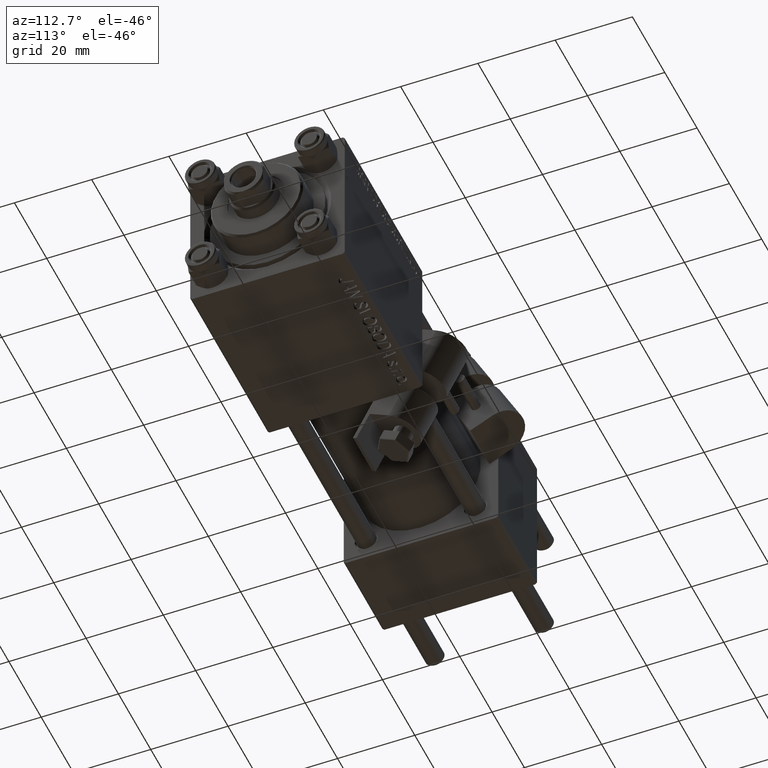
[diagram: clean part render]
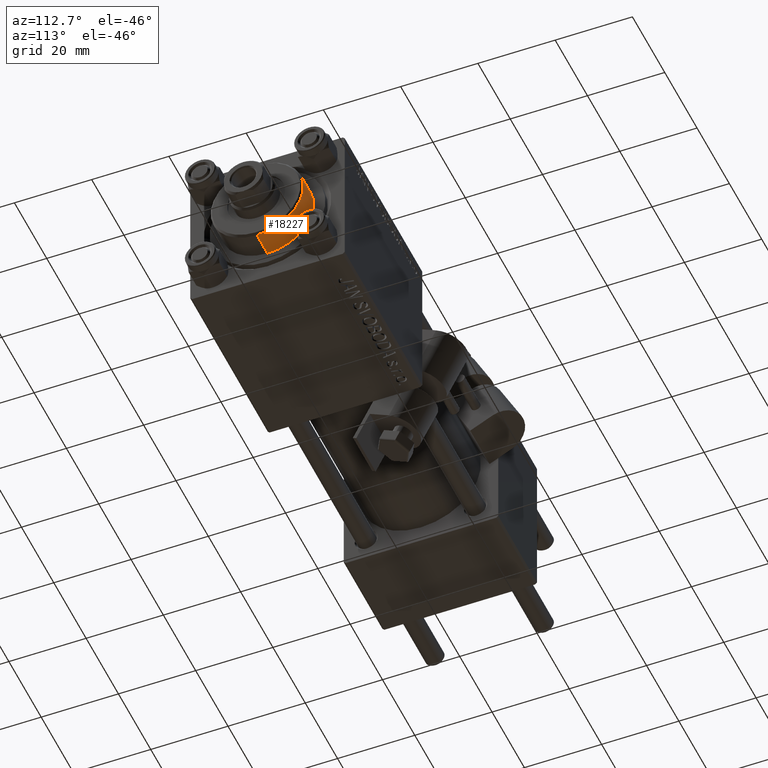
[diagram: same view with one face highlighted and labeled with its STEP entity id]
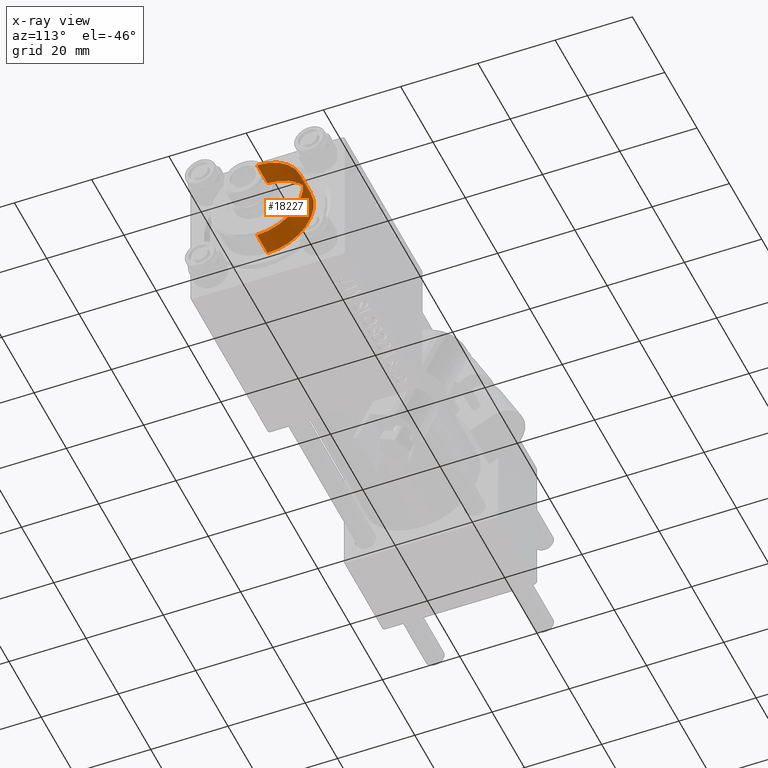
[diagram: x-ray of the same camera — body ghosted, the highlighted face saturated]
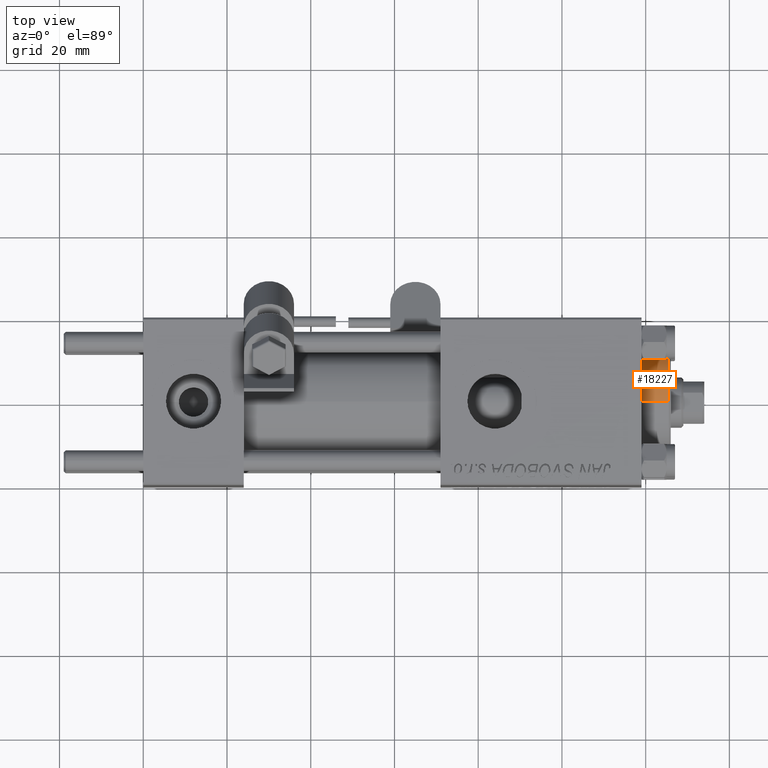
[diagram: same view with one face highlighted and labeled with its STEP entity id]
A machine part, auxiliary view. The second image highlights one B-rep face of the part: STEP entity #18227.
The next image is the same camera in x-ray: the body ghosted, the highlighted face saturated — about 0% of this face is hidden behind the body in this view.
A second angle (top view) of the same face is appended — the face is thin or edge-on in the first view.
In plain terms, the highlighted cylindrical surface (partial cylindrical patch) has radius 12 mm, axis along (-1, -0, 0).
Its self-contained STEP definition (entity closure, byte-faithful):
#4684 = DIRECTION ( 'NONE',  ( -0.000000000000000000, -0.000000000000000000, -1.000000000000000000 ) ) ;
#5420 = CARTESIAN_POINT ( 'NONE',  ( 12.00000000000000178, 1.469576158976824144E-15, 35.19999999999999574 ) ) ;
#6980 = CARTESIAN_POINT ( 'NONE',  ( 0.000000000000000000, 0.000000000000000000, 35.19999999999999574 ) ) ;
#7360 = VERTEX_POINT ( 'NONE', #5420 ) ;
#8060 = EDGE_LOOP ( 'NONE', ( #29598, #37823, #26264, #37351 ) ) ;
#8938 = CARTESIAN_POINT ( 'NONE',  ( 0.000000000000000000, 0.000000000000000000, 35.70000000000000284 ) ) ;
#9387 = LINE ( 'NONE', #13513, #50152 ) ;
#9438 = DIRECTION ( 'NONE',  ( -1.000000000000000000, 0.000000000000000000, 0.000000000000000000 ) ) ;
#11100 = DIRECTION ( 'NONE',  ( 0.000000000000000000, 0.000000000000000000, -1.000000000000000000 ) ) ;
#12177 = VERTEX_POINT ( 'NONE', #28389 ) ;
#12371 = EDGE_CURVE ( 'NONE', #12785, #7360, #38119, .T. ) ;
#12785 = VERTEX_POINT ( 'NONE', #47544 ) ;
#13513 = CARTESIAN_POINT ( 'NONE',  ( 12.00000000000000178, 1.469576158976824144E-15, 35.70000000000000284 ) ) ;
#14050 = EDGE_CURVE ( 'NONE', #20693, #12177, #31614, .T. ) ;
#14107 = DIRECTION ( 'NONE',  ( 0.000000000000000000, 0.000000000000000000, 1.000000000000000000 ) ) ;
#16411 = CYLINDRICAL_SURFACE ( 'NONE', #31766, 12.00000000000000178 ) ;
#17396 = VECTOR ( 'NONE', #4684, 1000.000000000000000 ) ;
#18227 = ADVANCED_FACE ( 'NONE', ( #19501 ), #16411, .T. ) ;
#19501 = FACE_OUTER_BOUND ( 'NONE', #8060, .T. ) ;
#20693 = VERTEX_POINT ( 'NONE', #33614 ) ;
#24229 = LINE ( 'NONE', #39914, #17396 ) ;
#26264 = ORIENTED_EDGE ( 'NONE', *, *, #14050, .T. ) ;
#26782 = DIRECTION ( 'NONE',  ( 1.000000000000000000, 0.000000000000000000, 0.000000000000000000 ) ) ;
#27466 = AXIS2_PLACEMENT_3D ( 'NONE', #6980, #11100, #26782 ) ;
#28213 = EDGE_CURVE ( 'NONE', #12785, #12177, #24229, .T. ) ;
#28389 = CARTESIAN_POINT ( 'NONE',  ( -12.00000000000000178, 0.000000000000000000, 28.69999999999999929 ) ) ;
#29598 = ORIENTED_EDGE ( 'NONE', *, *, #12371, .T. ) ;
#29783 = DIRECTION ( 'NONE',  ( 1.000000000000000000, 0.000000000000000000, 0.000000000000000000 ) ) ;
#30816 = EDGE_CURVE ( 'NONE', #7360, #20693, #9387, .T. ) ;
#31614 = CIRCLE ( 'NONE', #44759, 12.00000000000000178 ) ;
#31766 = AXIS2_PLACEMENT_3D ( 'NONE', #8938, #44407, #9438 ) ;
#33614 = CARTESIAN_POINT ( 'NONE',  ( 12.00000000000000178, 1.469576158976824144E-15, 28.69999999999999929 ) ) ;
#36889 = DIRECTION ( 'NONE',  ( -0.000000000000000000, -0.000000000000000000, -1.000000000000000000 ) ) ;
#37351 = ORIENTED_EDGE ( 'NONE', *, *, #28213, .F. ) ;
#37823 = ORIENTED_EDGE ( 'NONE', *, *, #30816, .T. ) ;
#38119 = CIRCLE ( 'NONE', #27466, 12.00000000000000178 ) ;
#39914 = CARTESIAN_POINT ( 'NONE',  ( -12.00000000000000178, 0.000000000000000000, 35.70000000000000284 ) ) ;
#44407 = DIRECTION ( 'NONE',  ( -0.000000000000000000, -0.000000000000000000, -1.000000000000000000 ) ) ;
#44759 = AXIS2_PLACEMENT_3D ( 'NONE', #49310, #14107, #29783 ) ;
#47544 = CARTESIAN_POINT ( 'NONE',  ( -12.00000000000000178, 0.000000000000000000, 35.19999999999999574 ) ) ;
#49310 = CARTESIAN_POINT ( 'NONE',  ( 0.000000000000000000, 0.000000000000000000, 28.69999999999999929 ) ) ;
#50152 = VECTOR ( 'NONE', #36889, 1000.000000000000000 ) ;